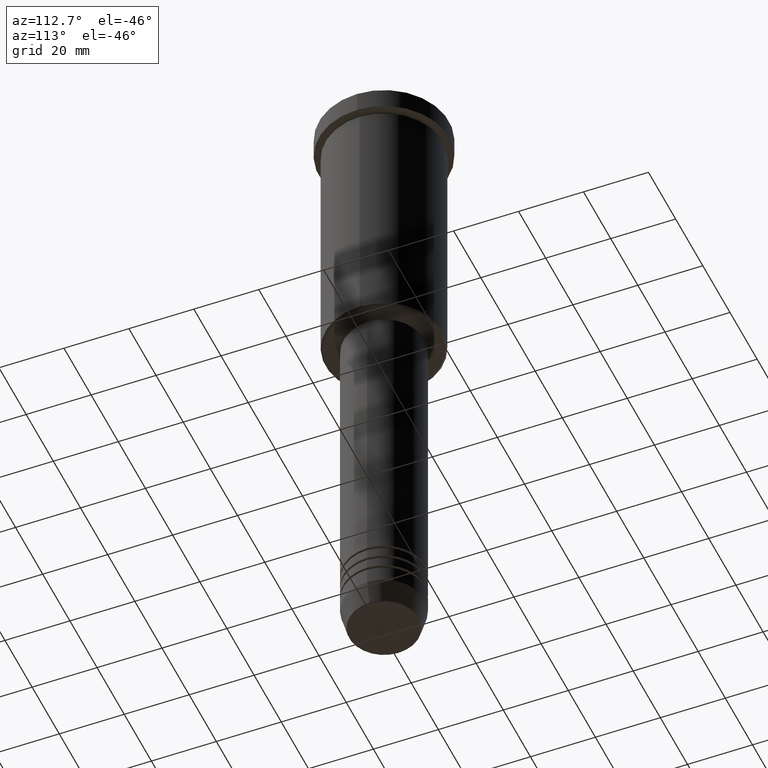
[diagram: clean part render]
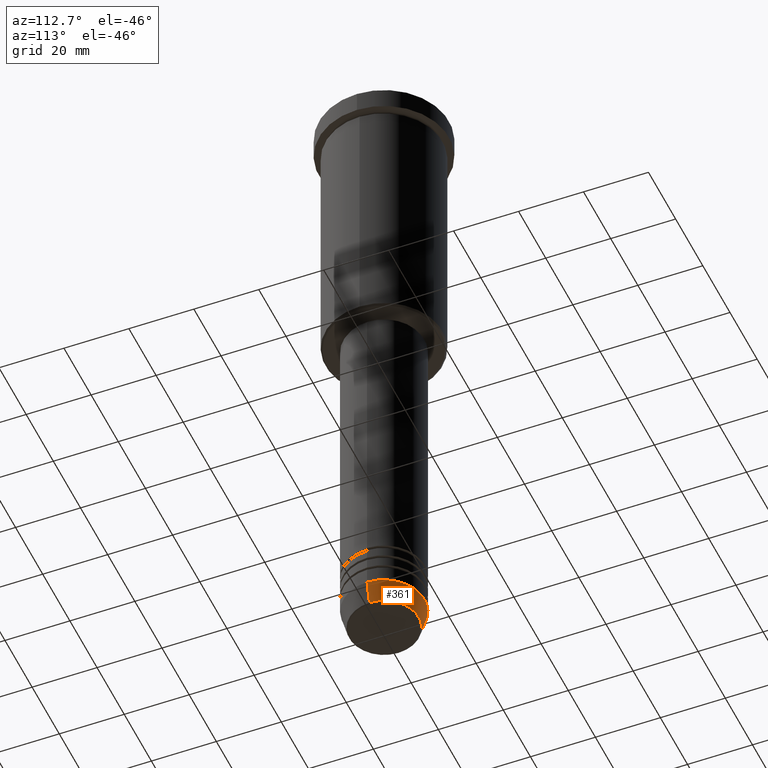
[diagram: same view with one face highlighted and labeled with its STEP entity id]
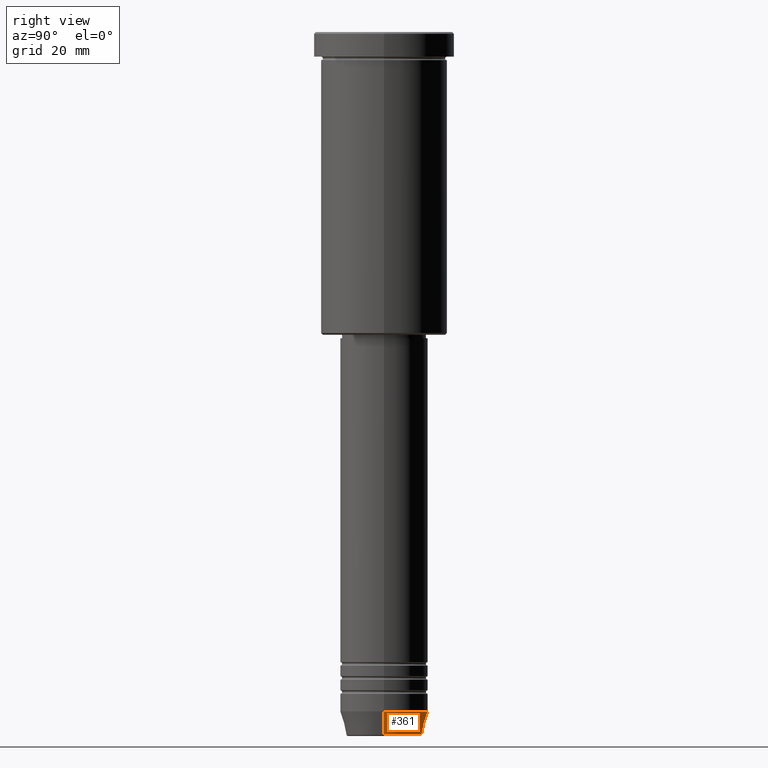
[diagram: same view with one face highlighted and labeled with its STEP entity id]
A machine part, auxiliary view. The second image highlights one B-rep face of the part: STEP entity #361.
A second angle (right view) of the same face is appended — the face is thin or edge-on in the first view.
In plain terms, the highlighted conical surface has half-angle 15 deg.
Its self-contained STEP definition (entity closure, byte-faithful):
#69 = ORIENTED_EDGE ( 'NONE', *, *, #185, .T. ) ;
#96 = AXIS2_PLACEMENT_3D ( 'NONE', #674, #1057, #322 ) ;
#133 = DIRECTION ( 'NONE',  ( -0.2588190451025213501, 3.169619151431772337E-17, 0.9659258262890680902 ) ) ;
#173 = ORIENTED_EDGE ( 'NONE', *, *, #775, .T. ) ;
#185 = EDGE_CURVE ( 'NONE', #1078, #922, #820, .T. ) ;
#194 = DIRECTION ( 'NONE',  ( -0.000000000000000000, -0.000000000000000000, 1.000000000000000000 ) ) ;
#212 = CARTESIAN_POINT ( 'NONE',  ( 12.50000000000000000, 0.000000000000000000, -193.0000000000000284 ) ) ;
#214 = CARTESIAN_POINT ( 'NONE',  ( 0.000000000000000000, 0.000000000000000000, -193.0000000000000284 ) ) ;
#228 = CARTESIAN_POINT ( 'NONE',  ( -12.50000000000000000, 1.530808498934191521E-15, -193.0000000000000284 ) ) ;
#232 = ORIENTED_EDGE ( 'NONE', *, *, #793, .F. ) ;
#235 = DIRECTION ( 'NONE',  ( -0.000000000000000000, -0.000000000000000000, 1.000000000000000000 ) ) ;
#237 = ORIENTED_EDGE ( 'NONE', *, *, #423, .F. ) ;
#256 = CARTESIAN_POINT ( 'NONE',  ( 12.50000000000000000, 0.000000000000000000, -193.0000000000000284 ) ) ;
#320 = DIRECTION ( 'NONE',  ( 1.000000000000000000, 0.000000000000000000, 0.000000000000000000 ) ) ;
#322 = DIRECTION ( 'NONE',  ( 1.000000000000000000, 0.000000000000000000, 0.000000000000000000 ) ) ;
#361 = ADVANCED_FACE ( 'NONE', ( #409 ), #612, .T. ) ;
#409 = FACE_OUTER_BOUND ( 'NONE', #518, .T. ) ;
#423 = EDGE_CURVE ( 'NONE', #1078, #1168, #705, .T. ) ;
#430 = VECTOR ( 'NONE', #133, 1000.000000000000000 ) ;
#518 = EDGE_LOOP ( 'NONE', ( #69, #173, #232, #237 ) ) ;
#612 = CONICAL_SURFACE ( 'NONE', #96, 12.50000000000000000, 0.2617993877991500740 ) ;
#622 = DIRECTION ( 'NONE',  ( 0.2588190451025213501, 0.000000000000000000, 0.9659258262890680902 ) ) ;
#674 = CARTESIAN_POINT ( 'NONE',  ( 0.000000000000000000, 0.000000000000000000, -193.0000000000000284 ) ) ;
#693 = VERTEX_POINT ( 'NONE', #1033 ) ;
#705 = LINE ( 'NONE', #256, #1086 ) ;
#754 = AXIS2_PLACEMENT_3D ( 'NONE', #214, #235, #320 ) ;
#764 = AXIS2_PLACEMENT_3D ( 'NONE', #848, #194, #836 ) ;
#775 = EDGE_CURVE ( 'NONE', #922, #693, #1061, .T. ) ;
#793 = EDGE_CURVE ( 'NONE', #1168, #693, #916, .T. ) ;
#820 = CIRCLE ( 'NONE', #764, 10.72365507213719127 ) ;
#836 = DIRECTION ( 'NONE',  ( 1.000000000000000000, 0.000000000000000000, 0.000000000000000000 ) ) ;
#848 = CARTESIAN_POINT ( 'NONE',  ( 0.000000000000000000, 0.000000000000000000, -199.6294095225512990 ) ) ;
#916 = CIRCLE ( 'NONE', #754, 12.50000000000000000 ) ;
#922 = VERTEX_POINT ( 'NONE', #1175 ) ;
#1033 = CARTESIAN_POINT ( 'NONE',  ( -12.50000000000000000, 1.530808498934191521E-15, -193.0000000000000284 ) ) ;
#1057 = DIRECTION ( 'NONE',  ( -0.000000000000000000, -0.000000000000000000, 1.000000000000000000 ) ) ;
#1061 = LINE ( 'NONE', #228, #430 ) ;
#1078 = VERTEX_POINT ( 'NONE', #1115 ) ;
#1086 = VECTOR ( 'NONE', #622, 1000.000000000000000 ) ;
#1115 = CARTESIAN_POINT ( 'NONE',  ( 10.72365507213719127, 0.000000000000000000, -199.6294095225512990 ) ) ;
#1168 = VERTEX_POINT ( 'NONE', #212 ) ;
#1175 = CARTESIAN_POINT ( 'NONE',  ( -10.72365507213719127, 1.422038742429750516E-15, -199.6294095225512990 ) ) ;